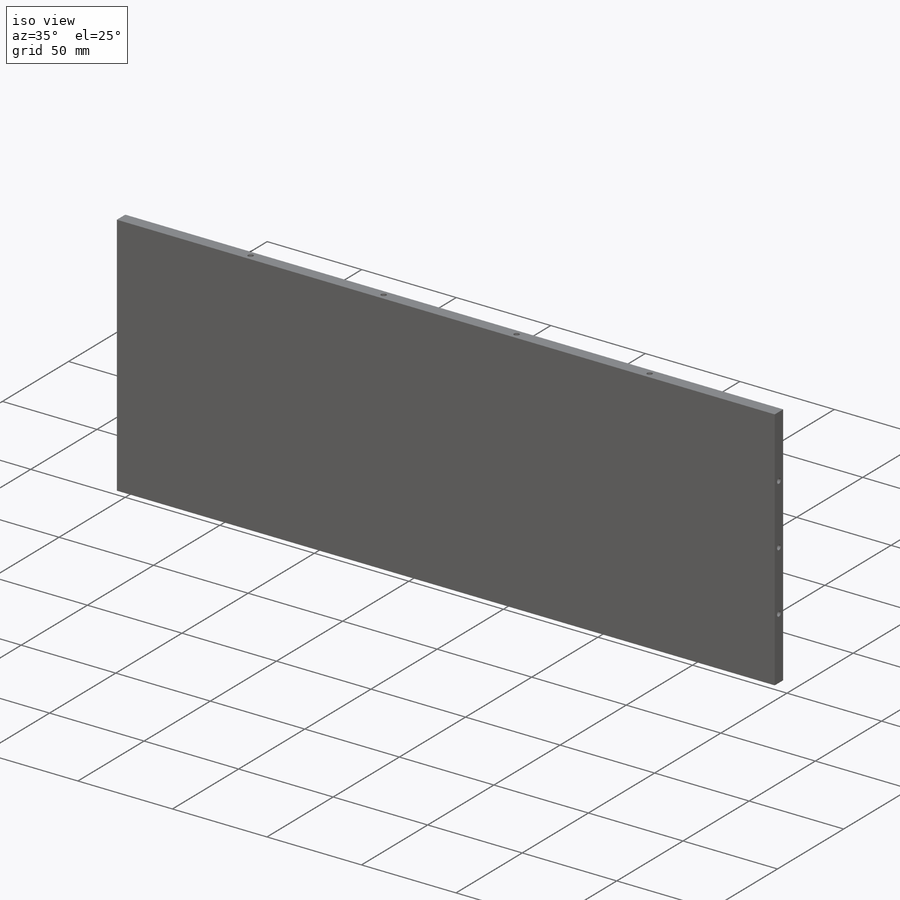
[diagram: iso view]
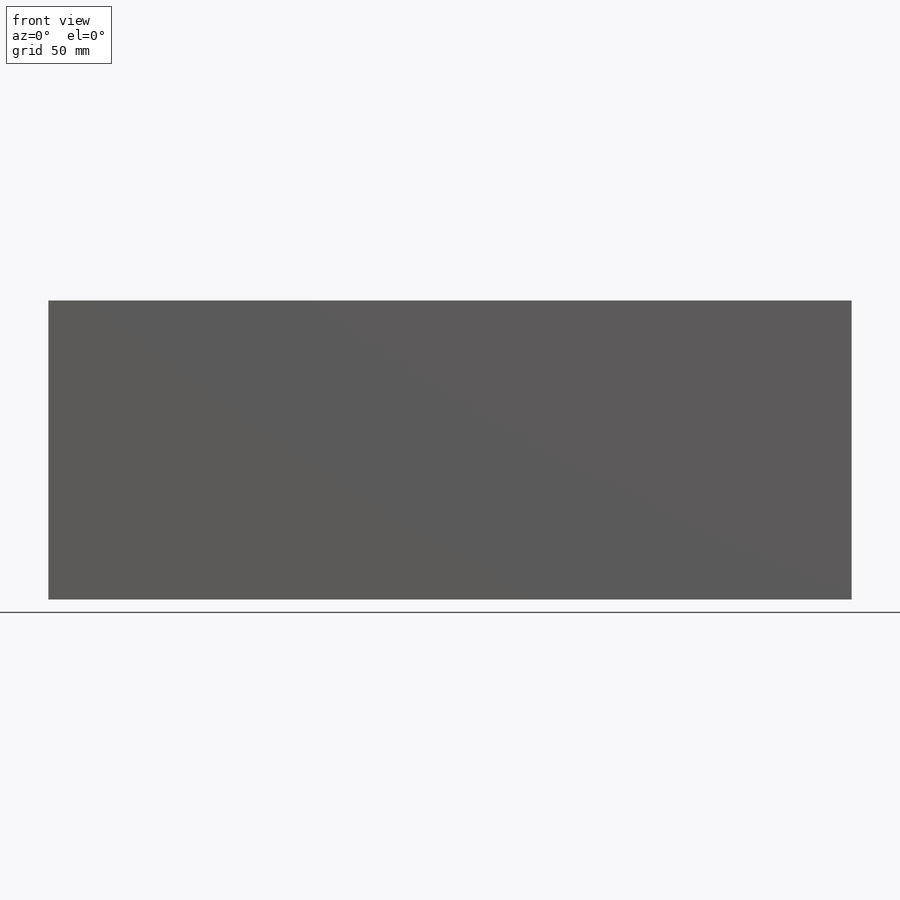
[diagram: front view]
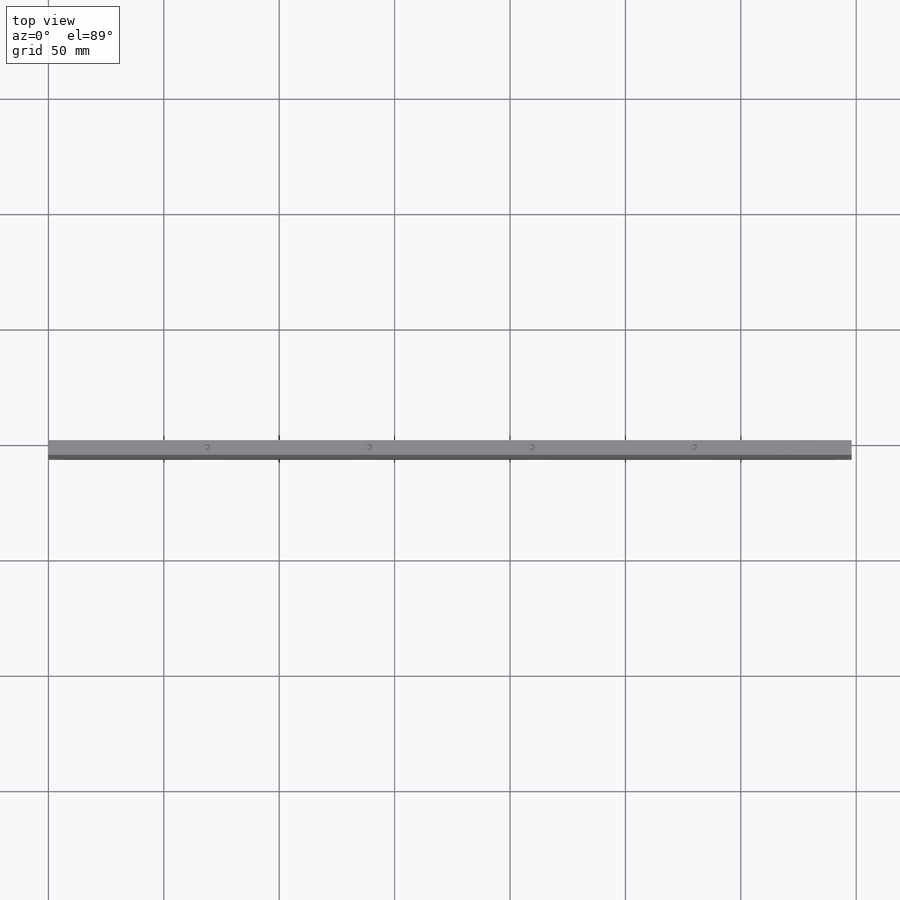
[diagram: top view]
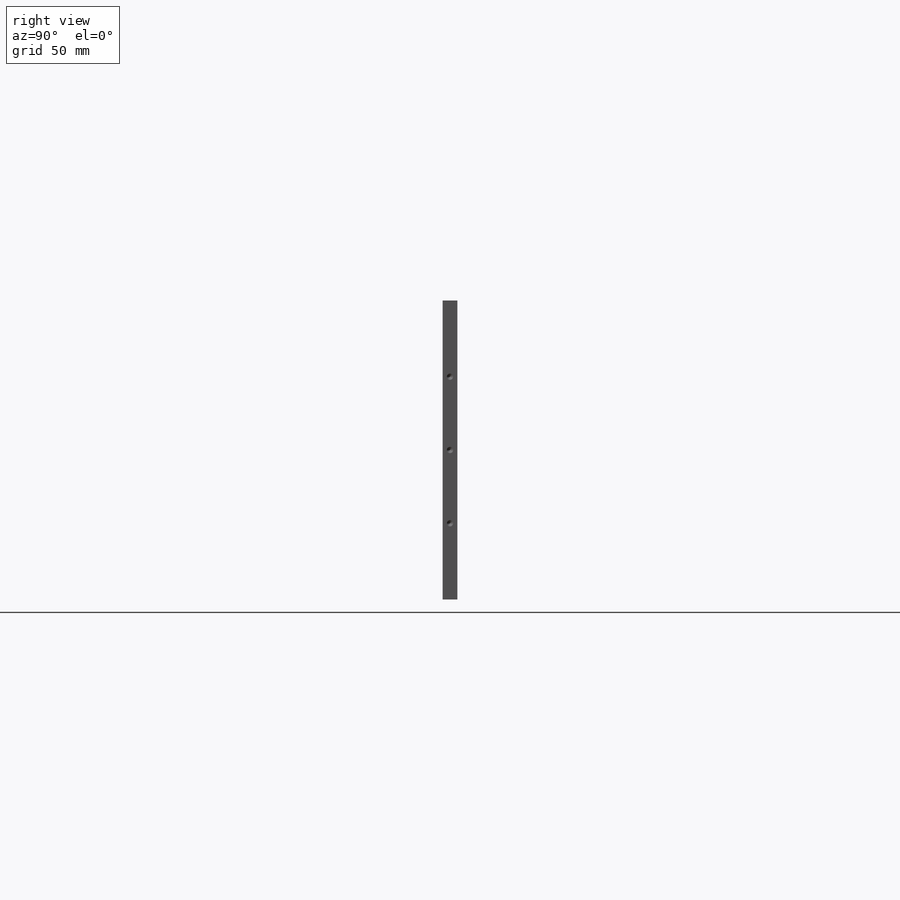
[diagram: right view]
SOLIDWORKS PART (.sldprt)
format: sldprt  version: not decoded by parser v0  size: 315,904 bytes
history: native  units: mm
features: sketch x9, hole x4, material x1, extrude x1 (+13 scaffold rows collapsed)
feature tree (28):
  scaffold x13  (default folders/planes/origin — collapsed)
  material  "6061 Alloy"
  sketch  "Sketch1"  dims[D1=347.98mm D2=129.54mm]
  extrude  "Boss-Extrude1"  Depth=6.35mm
  hole  "#34 (0.111) Diameter Hole4"  Diameter=2.3749mm Depth=17.78mm
  sketch  "Sketch8"  dims[c1.D1=63.5mm c1.D2=31.75mm c1.D3=31.75mm c2.D1=~30.879814mm]
  sketch  "Sketch9"  dims[Hole Dia.=2.3749mm Hole Depth=17.78mm Drill Angle=118.0deg]
  hole  "Tap Drill for #6-32 Tap1"  Diameter=2.7051mm Depth=17.78mm
  sketch  "Sketch10"  dims[D1=35.1028mm D2=35.2552mm D3=70.358mm D4=70.358mm]
  sketch  "Sketch11"  dims[Hole Dia.=2.7051mm Hole Depth=17.78mm Drill Angle=118.0deg]
  hole  "Tap Drill for #6-32 Tap2"  Diameter=2.7051mm Depth=17.78mm
  sketch  "Sketch12"  dims[D1=35.1028mm D2=35.2552mm D3=70.358mm D4=70.358mm]
  sketch  "Sketch13"  dims[Hole Dia.=2.7051mm Hole Depth=17.78mm Drill Angle=118.0deg]
  hole  "Tap Drill for #6-32 Tap3"  Diameter=2.7051mm Depth=17.78mm
  sketch  "Sketch15"  dims[D1=31.75mm D2=31.75mm]
  sketch  "Sketch14"  dims[hole-wizard template sketch: 47 standard entries collapsed; hole parameters kept: c15.Hole Depth=17.78mm c15.D3=~14.816244mm c15.Drill Angle=118.0deg]
decode coverage: 14 of 14 modeling features carry decoded parameters
note: ~ marks probable driven/reference dimensions
summary: Diameter pulled from absorbed wizard sketch
note: suppression state not decoded; provenance and decode notes live in map.json
